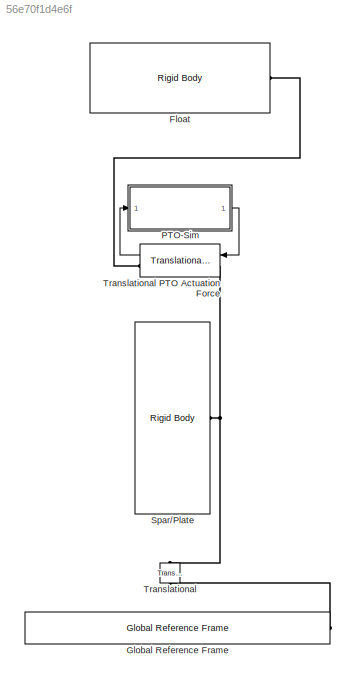
MODEL slx_56e70f1d4e6f
KIND model
CONFIG AbsTol = auto
CONFIG EnableMultiTasking = on
CONFIG FixedStep = 0.0005
CONFIG MaxStep = 0.0005
CONFIG MinStep = auto
CONFIG RelTol = 1e-3
CONFIG SampleTimeConstraint = Unconstrained
CONFIG SolverName = ode4
CONFIG StartTime = 0
CONFIG StopTime = 400
BLOCK [Reference] Float  REF=WECSim_Lib_Body_Elements/Rigid Body
  AttributesFormatString = %<body>
  Ports = [0, 0, 0, 0, 0, 0, 1]
  SourceBlock = WECSim_Lib_Body_Elements/Rigid Body
  SourceProductName = WEC-Sim
  SourceType = Rigid Body
BLOCK [Reference] Global Reference Frame  REF=WECSim_Lib_Frames/Global Reference Frame
  Ports = [0, 0, 0, 0, 0, 0, 1]
  SourceBlock = WECSim_Lib_Frames/Global Reference Frame
  SourceProductName = WEC-Sim
  SourceType = Frames
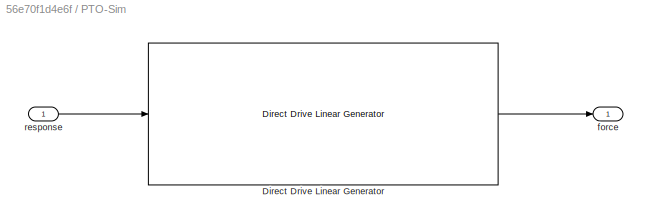
BLOCK [SubSystem] PTO-Sim
  NameLocation = top
  Ports = [1, 1]
  RequestExecContextInheritance = off
BLOCK [Reference] PTO-Sim/Direct Drive Linear Generator  REF=PTOSim_Lib/Electric/Direct Drive Linear Generator
  Ports = [1, 1]
  SourceBlock = PTOSim_Lib/Electric/Direct Drive Linear Generator
  SourceProductName = PTO-Sim
BLOCK [Outport] PTO-Sim/force
  VectorParamsAs1DForOutWhenUnconnected = off
BLOCK [Inport] PTO-Sim/response
BLOCK [Reference] Spar//Plate  REF=WECSim_Lib_Body_Elements/Rigid Body
  AttributesFormatString = %<body>
  Ports = [0, 0, 0, 0, 0, 0, 1]
  SourceBlock = WECSim_Lib_Body_Elements/Rigid Body
  SourceProductName = WEC-Sim
  SourceType = Rigid Body
BLOCK [Reference] Translational  REF=WECSim_Lib_Constraints/Translational
  AttributesFormatString = %<constraint>
  NameLocation = right
  Ports = [0, 0, 0, 0, 0, 1, 1]
  SourceBlock = WECSim_Lib_Constraints/Translational
  SourceProductName = WEC-Sim
  SourceType = Constraints
BLOCK [Reference] Translational PTO Actuation Force  REF=WECSim_Lib_PTOs/Translational PTO
Actuation Force
  AttributesFormatString = %<pto>
  Ports = [1, 1, 0, 0, 0, 1, 1]
  SourceBlock = WECSim_Lib_PTOs/Translational PTO\nActuation Force
  SourceProductName = WEC-Sim
  SourceType = PTO
LINE PTO-Sim/Direct Drive Linear Generator:1 -> PTO-Sim/force:1
LINE PTO-Sim/response:1 -> PTO-Sim/Direct Drive Linear Generator:1
LINE PTO-Sim:1 -> Translational PTO Actuation Force:1
LINE Translational PTO Actuation Force:1 -> PTO-Sim:1
PLINE Float:RConn1 -- Translational PTO Actuation Force:RConn1
PLINE Global Reference Frame:RConn1 -- Translational:LConn1
PNET net1: Spar//Plate:RConn1 -- Translational PTO Actuation Force:LConn1 -- Translational:RConn1
note: PNET lines group multi-terminal physical nets as a canonical sorted terminal list (undirected conserving connections); 2-terminal nets keep the pairwise PLINE form
